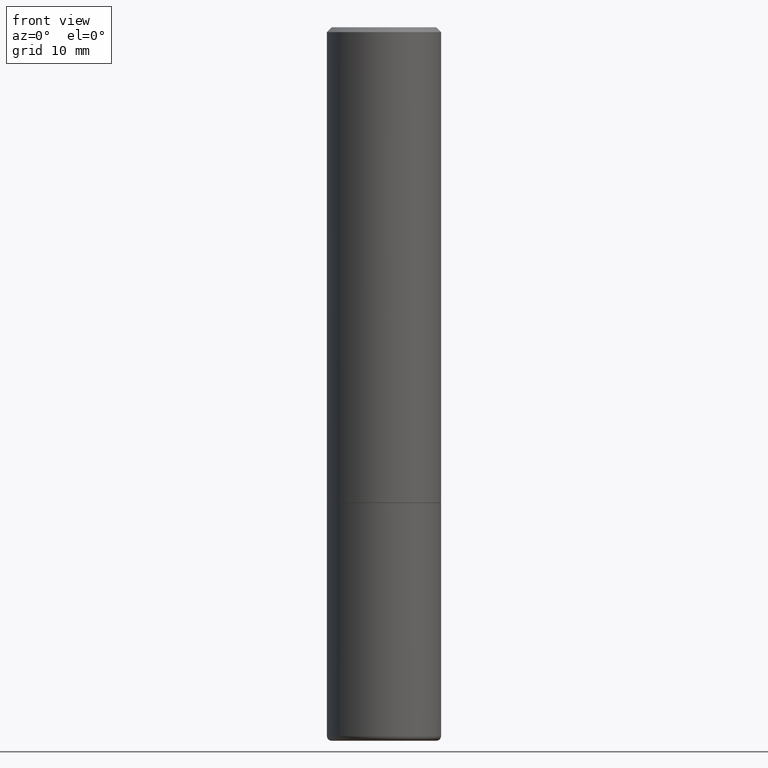
[diagram: clean part render]
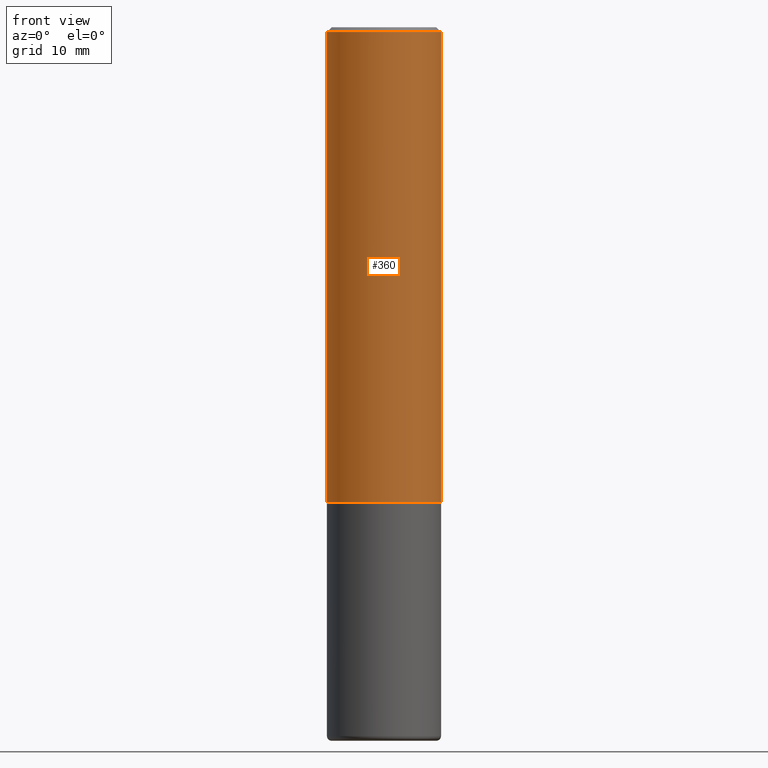
[diagram: same view with one face highlighted and labeled with its STEP entity id]
A machine part, front view. The second image highlights one B-rep face of the part: STEP entity #360.
In plain terms, the highlighted cylindrical surface (partial cylindrical patch) has radius 5.9995 mm, axis along (-0, 0, 1).
Its self-contained STEP definition (entity closure, byte-faithful):
#5 = ORIENTED_EDGE ( 'NONE', *, *, #33, .F. ) ;
#11 = DIRECTION ( 'NONE',  ( -2.445468806185136877E-29, 3.491481338843145188E-15, 1.000000000000000000 ) ) ;
#17 = DIRECTION ( 'NONE',  ( -2.445468806185136877E-29, 3.491481338843145188E-15, 1.000000000000000000 ) ) ;
#24 = ORIENTED_EDGE ( 'NONE', *, *, #89, .F. ) ;
#29 = CIRCLE ( 'NONE', #263, 0.2362000000000002431 ) ;
#33 = EDGE_CURVE ( 'NONE', #387, #363, #355, .T. ) ;
#35 = DIRECTION ( 'NONE',  ( 1.000000000000000000, -6.982962677686265922E-15, 0.000000000000000000 ) ) ;
#61 = EDGE_CURVE ( 'NONE', #297, #363, #96, .T. ) ;
#72 = CARTESIAN_POINT ( 'NONE',  ( 4.890937612370285420E-31, -6.982962677686308865E-17, -0.02000000000000005246 ) ) ;
#89 = EDGE_CURVE ( 'NONE', #137, #387, #139, .T. ) ;
#96 = LINE ( 'NONE', #364, #155 ) ;
#107 = CARTESIAN_POINT ( 'NONE',  ( -0.2362000000000001321, 1.678301941865357577E-15, -1.161852468318209457E-29 ) ) ;
#114 = CARTESIAN_POINT ( 'NONE',  ( 0.000000000000000000, 0.000000000000000000, 0.000000000000000000 ) ) ;
#126 = DIRECTION ( 'NONE',  ( -2.445468806185136597E-29, 3.491481338843145583E-15, 1.000000000000000000 ) ) ;
#137 = VERTEX_POINT ( 'NONE', #257 ) ;
#139 = LINE ( 'NONE', #107, #262 ) ;
#150 = AXIS2_PLACEMENT_3D ( 'NONE', #114, #126, #409 ) ;
#155 = VECTOR ( 'NONE', #11, 39.37007874015748143 ) ;
#184 = CYLINDRICAL_SURFACE ( 'NONE', #150, 0.2362000000000001321 ) ;
#216 = DIRECTION ( 'NONE',  ( 1.000000000000000000, -6.982962677686266711E-15, 0.000000000000000000 ) ) ;
#250 = CARTESIAN_POINT ( 'NONE',  ( 0.2362000000000002431, -8.518865318643385225E-15, -1.967499999999999805 ) ) ;
#257 = CARTESIAN_POINT ( 'NONE',  ( -0.2362000000000002431, -1.791357638610016055E-15, -1.967499999999999805 ) ) ;
#258 = AXIS2_PLACEMENT_3D ( 'NONE', #72, #306, #216 ) ;
#262 = VECTOR ( 'NONE', #17, 39.37007874015748143 ) ;
#263 = AXIS2_PLACEMENT_3D ( 'NONE', #340, #271, #35 ) ;
#271 = DIRECTION ( 'NONE',  ( -2.445468806185136597E-29, 3.491481338843145583E-15, 1.000000000000000000 ) ) ;
#278 = EDGE_LOOP ( 'NONE', ( #24, #416, #332, #5 ) ) ;
#297 = VERTEX_POINT ( 'NONE', #250 ) ;
#306 = DIRECTION ( 'NONE',  ( -2.445468806185136597E-29, 3.491481338843145583E-15, 1.000000000000000000 ) ) ;
#311 = CARTESIAN_POINT ( 'NONE',  ( 0.2361999999999999933, -1.690279253850498771E-15, -0.02000000000000005246 ) ) ;
#332 = ORIENTED_EDGE ( 'NONE', *, *, #61, .T. ) ;
#340 = CARTESIAN_POINT ( 'NONE',  ( 4.811459876169255671E-29, -6.869489534173887122E-15, -1.967499999999999805 ) ) ;
#355 = CIRCLE ( 'NONE', #258, 0.2361999999999999933 ) ;
#360 = ADVANCED_FACE ( 'NONE', ( #408 ), #184, .T. ) ;
#363 = VERTEX_POINT ( 'NONE', #311 ) ;
#364 = CARTESIAN_POINT ( 'NONE',  ( 0.2362000000000001321, -1.649375784469497117E-15, 1.151752954443000789E-29 ) ) ;
#382 = CARTESIAN_POINT ( 'NONE',  ( -0.2361999999999999933, 1.579546157692633030E-15, -0.02000000000000005246 ) ) ;
#387 = VERTEX_POINT ( 'NONE', #382 ) ;
#408 = FACE_OUTER_BOUND ( 'NONE', #278, .T. ) ;
#409 = DIRECTION ( 'NONE',  ( 1.000000000000000000, -6.982962677686266711E-15, 4.876176775795936353E-29 ) ) ;
#413 = EDGE_CURVE ( 'NONE', #137, #297, #29, .T. ) ;
#416 = ORIENTED_EDGE ( 'NONE', *, *, #413, .T. ) ;